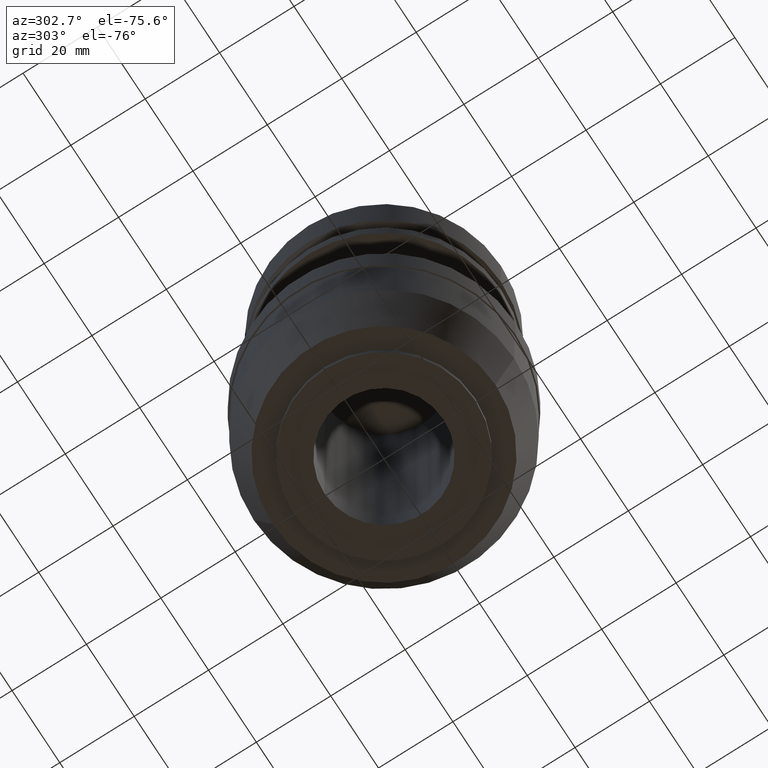
[diagram: clean part render]
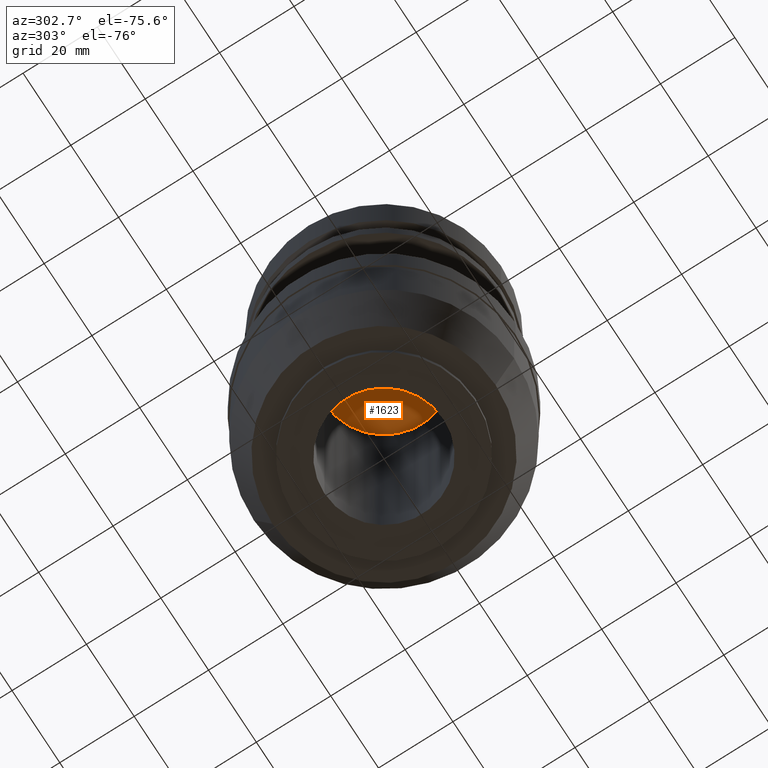
[diagram: same view with one face highlighted and labeled with its STEP entity id]
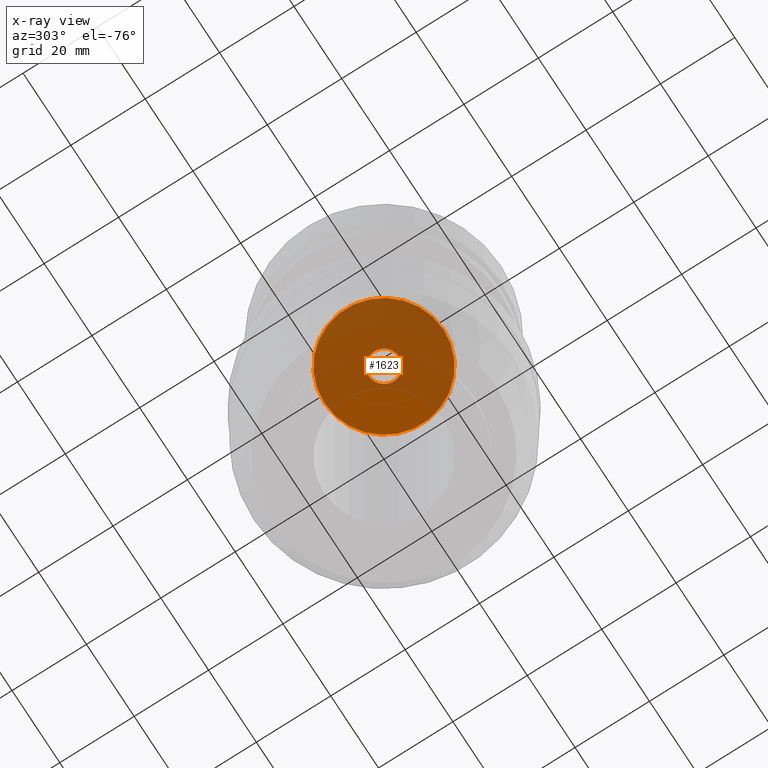
[diagram: x-ray of the same camera — body ghosted, the highlighted face saturated]
A machine part, auxiliary view. The second image highlights one B-rep face of the part: STEP entity #1623.
The next image is the same camera in x-ray: the body ghosted, the highlighted face saturated — about 76% of this face is hidden behind the body in this view.
In plain terms, the highlighted planar face has unit normal (0, 0, 1).
Its self-contained STEP definition (entity closure, byte-faithful):
#612=CARTESIAN_POINT('',(0.E0,0.E0,-2.5E1));
#613=DIRECTION('',(0.E0,0.E0,1.E0));
#614=DIRECTION('',(0.E0,-1.E0,0.E0));
#615=AXIS2_PLACEMENT_3D('',#612,#613,#614);
#620=CARTESIAN_POINT('',(0.E0,0.E0,-2.5E1));
#621=DIRECTION('',(0.E0,0.E0,1.E0));
#622=DIRECTION('',(0.E0,1.E0,0.E0));
#623=AXIS2_PLACEMENT_3D('',#620,#621,#622);
#628=CARTESIAN_POINT('',(0.E0,0.E0,-2.5E1));
#629=DIRECTION('',(0.E0,0.E0,-1.E0));
#630=DIRECTION('',(0.E0,-1.E0,0.E0));
#631=AXIS2_PLACEMENT_3D('',#628,#629,#630);
#636=CARTESIAN_POINT('',(0.E0,0.E0,-2.5E1));
#637=DIRECTION('',(0.E0,0.E0,-1.E0));
#638=DIRECTION('',(0.E0,1.E0,0.E0));
#639=AXIS2_PLACEMENT_3D('',#636,#637,#638);
#998=CARTESIAN_POINT('',(0.E0,1.6E1,-2.5E1));
#999=VERTEX_POINT('',#998);
#1000=CARTESIAN_POINT('',(0.E0,-1.6E1,-2.5E1));
#1001=VERTEX_POINT('',#1000);
#1002=CARTESIAN_POINT('',(0.E0,-4.125E0,-2.5E1));
#1003=CARTESIAN_POINT('',(0.E0,4.125E0,-2.5E1));
#1004=VERTEX_POINT('',#1002);
#1005=VERTEX_POINT('',#1003);
#1608=CARTESIAN_POINT('',(0.E0,0.E0,-2.5E1));
#1609=DIRECTION('',(0.E0,0.E0,1.E0));
#1610=DIRECTION('',(0.E0,1.E0,0.E0));
#1611=AXIS2_PLACEMENT_3D('',#1608,#1609,#1610);
#1612=PLANE('',#1611);
#1613=ORIENTED_EDGE('',*,*,#1601,.T.);
#1614=ORIENTED_EDGE('',*,*,#1590,.T.);
#1615=EDGE_LOOP('',(#1613,#1614));
#1616=FACE_OUTER_BOUND('',#1615,.F.);
#1618=ORIENTED_EDGE('',*,*,#1617,.T.);
#1620=ORIENTED_EDGE('',*,*,#1619,.T.);
#1621=EDGE_LOOP('',(#1618,#1620));
#1622=FACE_BOUND('',#1621,.F.);
#616=CIRCLE('',#615,1.6E1);
#624=CIRCLE('',#623,1.6E1);
#632=CIRCLE('',#631,4.125E0);
#640=CIRCLE('',#639,4.125E0);
#1590=EDGE_CURVE('',#999,#1001,#624,.T.);
#1601=EDGE_CURVE('',#1001,#999,#616,.T.);
#1617=EDGE_CURVE('',#1004,#1005,#632,.T.);
#1619=EDGE_CURVE('',#1005,#1004,#640,.T.);
#1623=ADVANCED_FACE('',(#1616,#1622),#1612,.F.);